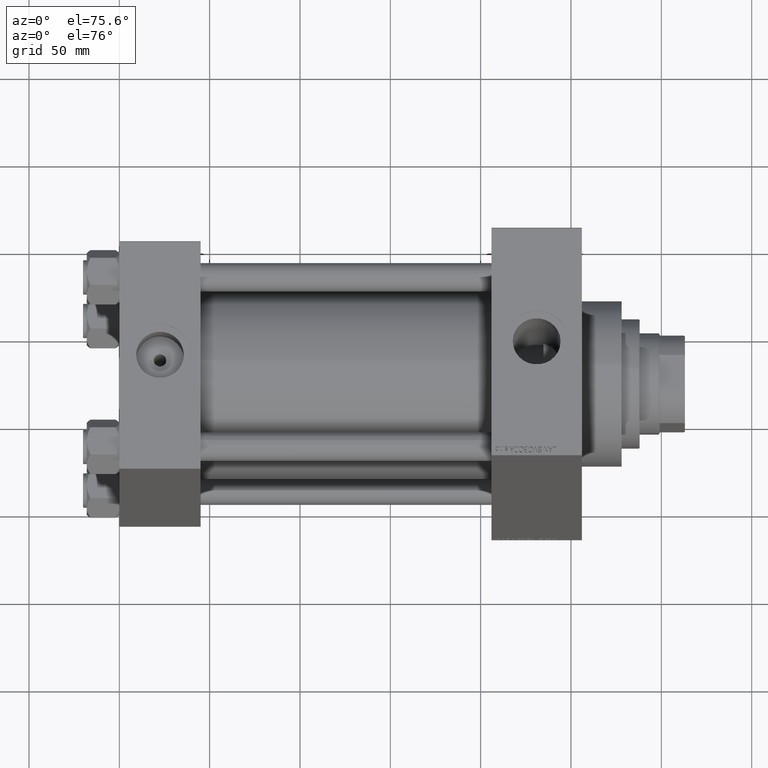
[diagram: clean part render]
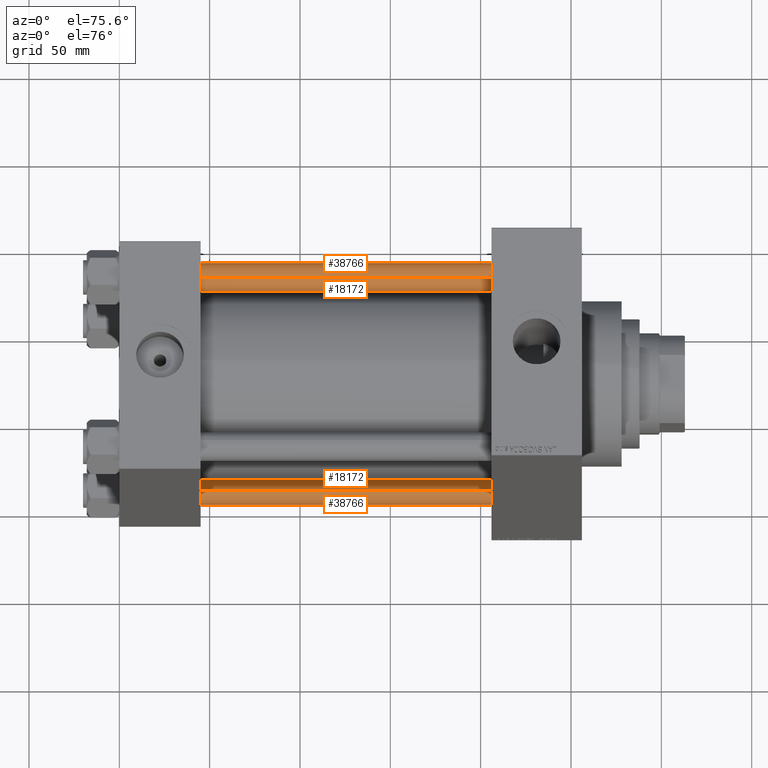
[diagram: same view with one multi-face feature highlighted, each face labeled with its STEP entity id]
A machine part, auxiliary view. The highlighted faces form ONE feature: a constant-radius fillet chain: 4 tangent blend faces with common blend radius 8 mm. The faces share edges in the B-rep.
Their STEP definitions:
[1] entity #18172 (Cylinder):
#801 = ORIENTED_EDGE ( 'NONE', *, *, #19070, .T. ) ;
#1040 = CIRCLE ( 'NONE', #34179, 8.000000000000000000 ) ;
#1602 = CARTESIAN_POINT ( 'NONE',  ( -8.000000000000000000, 0.000000000000000000, 0.5000000000000837108 ) ) ;
#2295 = ORIENTED_EDGE ( 'NONE', *, *, #24264, .F. ) ;
#2569 = VECTOR ( 'NONE', #39335, 1000.000000000000000 ) ;
#3221 = AXIS2_PLACEMENT_3D ( 'NONE', #13576, #24436, #35773 ) ;
#5987 = CARTESIAN_POINT ( 'NONE',  ( 0.000000000000000000, 0.000000000000000000, 0.5000000000000837108 ) ) ;
#8645 = LINE ( 'NONE', #27465, #17211 ) ;
#12040 = EDGE_CURVE ( 'NONE', #45535, #38087, #8645, .T. ) ;
#12161 = FACE_OUTER_BOUND ( 'NONE', #16840, .T. ) ;
#13335 = CYLINDRICAL_SURFACE ( 'NONE', #3221, 8.000000000000000000 ) ;
#13576 = CARTESIAN_POINT ( 'NONE',  ( 0.000000000000000000, 0.000000000000000000, 239.0000000000000000 ) ) ;
#15789 = DIRECTION ( 'NONE',  ( 1.000000000000000000, 0.000000000000000000, 0.000000000000000000 ) ) ;
#16840 = EDGE_LOOP ( 'NONE', ( #2295, #801, #19944, #38051 ) ) ;
#16850 = DIRECTION ( 'NONE',  ( -0.000000000000000000, -0.000000000000000000, 1.000000000000000000 ) ) ;
#17211 = VECTOR ( 'NONE', #27235, 1000.000000000000000 ) ;
#17333 = DIRECTION ( 'NONE',  ( 1.000000000000000000, 0.000000000000000000, 0.000000000000000000 ) ) ;
#18172 = ADVANCED_FACE ( 'NONE', ( #12161 ), #13335, .T. ) ;
#19016 = CARTESIAN_POINT ( 'NONE',  ( 8.000000000000000000, 9.797174393178823685E-16, 0.5000000000000837108 ) ) ;
#19070 = EDGE_CURVE ( 'NONE', #19760, #45535, #21009, .T. ) ;
#19760 = VERTEX_POINT ( 'NONE', #26352 ) ;
#19944 = ORIENTED_EDGE ( 'NONE', *, *, #12040, .T. ) ;
#21009 = CIRCLE ( 'NONE', #29491, 8.000000000000000000 ) ;
#24264 = EDGE_CURVE ( 'NONE', #19760, #38942, #39819, .T. ) ;
#24436 = DIRECTION ( 'NONE',  ( -0.000000000000000000, -0.000000000000000000, -1.000000000000000000 ) ) ;
#24458 = EDGE_CURVE ( 'NONE', #38087, #38942, #1040, .T. ) ;
#26352 = CARTESIAN_POINT ( 'NONE',  ( 8.000000000000000000, 9.797174393178823685E-16, 238.5000000000001421 ) ) ;
#27235 = DIRECTION ( 'NONE',  ( -0.000000000000000000, -0.000000000000000000, -1.000000000000000000 ) ) ;
#27465 = CARTESIAN_POINT ( 'NONE',  ( -8.000000000000000000, 0.000000000000000000, 239.0000000000000000 ) ) ;
#29491 = AXIS2_PLACEMENT_3D ( 'NONE', #30273, #37991, #15789 ) ;
#30273 = CARTESIAN_POINT ( 'NONE',  ( 0.000000000000000000, 0.000000000000000000, 238.5000000000001421 ) ) ;
#34179 = AXIS2_PLACEMENT_3D ( 'NONE', #5987, #16850, #17333 ) ;
#35773 = DIRECTION ( 'NONE',  ( -1.000000000000000000, 0.000000000000000000, 0.000000000000000000 ) ) ;
#37991 = DIRECTION ( 'NONE',  ( 0.000000000000000000, 0.000000000000000000, -1.000000000000000000 ) ) ;
#38051 = ORIENTED_EDGE ( 'NONE', *, *, #24458, .T. ) ;
#38087 = VERTEX_POINT ( 'NONE', #1602 ) ;
#38942 = VERTEX_POINT ( 'NONE', #19016 ) ;
#39335 = DIRECTION ( 'NONE',  ( -0.000000000000000000, -0.000000000000000000, -1.000000000000000000 ) ) ;
#39819 = LINE ( 'NONE', #42744, #2569 ) ;
#42744 = CARTESIAN_POINT ( 'NONE',  ( 8.000000000000000000, 9.797174393178823685E-16, 239.0000000000000000 ) ) ;
#45535 = VERTEX_POINT ( 'NONE', #47072 ) ;
#47072 = CARTESIAN_POINT ( 'NONE',  ( -8.000000000000000000, 0.000000000000000000, 238.5000000000001421 ) ) ;
[2] entity #38766 (Cylinder):
#1602 = CARTESIAN_POINT ( 'NONE',  ( -8.000000000000000000, 0.000000000000000000, 0.5000000000000837108 ) ) ;
#2569 = VECTOR ( 'NONE', #39335, 1000.000000000000000 ) ;
#7636 = EDGE_CURVE ( 'NONE', #38942, #38087, #28745, .T. ) ;
#7681 = AXIS2_PLACEMENT_3D ( 'NONE', #42783, #47118, #32145 ) ;
#7963 = AXIS2_PLACEMENT_3D ( 'NONE', #17811, #10338, #10817 ) ;
#8040 = CARTESIAN_POINT ( 'NONE',  ( 0.000000000000000000, 0.000000000000000000, 239.0000000000000000 ) ) ;
#8645 = LINE ( 'NONE', #27465, #17211 ) ;
#10338 = DIRECTION ( 'NONE',  ( -0.000000000000000000, -0.000000000000000000, 1.000000000000000000 ) ) ;
#10817 = DIRECTION ( 'NONE',  ( 1.000000000000000000, 0.000000000000000000, 0.000000000000000000 ) ) ;
#12040 = EDGE_CURVE ( 'NONE', #45535, #38087, #8645, .T. ) ;
#12154 = AXIS2_PLACEMENT_3D ( 'NONE', #8040, #23225, #37706 ) ;
#17211 = VECTOR ( 'NONE', #27235, 1000.000000000000000 ) ;
#17811 = CARTESIAN_POINT ( 'NONE',  ( 0.000000000000000000, 0.000000000000000000, 0.5000000000000837108 ) ) ;
#19016 = CARTESIAN_POINT ( 'NONE',  ( 8.000000000000000000, 9.797174393178823685E-16, 0.5000000000000837108 ) ) ;
#19760 = VERTEX_POINT ( 'NONE', #26352 ) ;
#23225 = DIRECTION ( 'NONE',  ( -0.000000000000000000, -0.000000000000000000, -1.000000000000000000 ) ) ;
#24264 = EDGE_CURVE ( 'NONE', #19760, #38942, #39819, .T. ) ;
#24975 = EDGE_LOOP ( 'NONE', ( #41125, #27237, #36837, #29425 ) ) ;
#26352 = CARTESIAN_POINT ( 'NONE',  ( 8.000000000000000000, 9.797174393178823685E-16, 238.5000000000001421 ) ) ;
#27235 = DIRECTION ( 'NONE',  ( -0.000000000000000000, -0.000000000000000000, -1.000000000000000000 ) ) ;
#27237 = ORIENTED_EDGE ( 'NONE', *, *, #24264, .T. ) ;
#27465 = CARTESIAN_POINT ( 'NONE',  ( -8.000000000000000000, 0.000000000000000000, 239.0000000000000000 ) ) ;
#28745 = CIRCLE ( 'NONE', #7963, 8.000000000000000000 ) ;
#29425 = ORIENTED_EDGE ( 'NONE', *, *, #12040, .F. ) ;
#30226 = CYLINDRICAL_SURFACE ( 'NONE', #12154, 8.000000000000000000 ) ;
#32145 = DIRECTION ( 'NONE',  ( 1.000000000000000000, 0.000000000000000000, 0.000000000000000000 ) ) ;
#34640 = CIRCLE ( 'NONE', #7681, 8.000000000000000000 ) ;
#36837 = ORIENTED_EDGE ( 'NONE', *, *, #7636, .T. ) ;
#37471 = FACE_OUTER_BOUND ( 'NONE', #24975, .T. ) ;
#37706 = DIRECTION ( 'NONE',  ( -1.000000000000000000, 0.000000000000000000, 0.000000000000000000 ) ) ;
#38087 = VERTEX_POINT ( 'NONE', #1602 ) ;
#38766 = ADVANCED_FACE ( 'NONE', ( #37471 ), #30226, .T. ) ;
#38942 = VERTEX_POINT ( 'NONE', #19016 ) ;
#39335 = DIRECTION ( 'NONE',  ( -0.000000000000000000, -0.000000000000000000, -1.000000000000000000 ) ) ;
#39819 = LINE ( 'NONE', #42744, #2569 ) ;
#41125 = ORIENTED_EDGE ( 'NONE', *, *, #43232, .T. ) ;
#42744 = CARTESIAN_POINT ( 'NONE',  ( 8.000000000000000000, 9.797174393178823685E-16, 239.0000000000000000 ) ) ;
#42783 = CARTESIAN_POINT ( 'NONE',  ( 0.000000000000000000, 0.000000000000000000, 238.5000000000001421 ) ) ;
#43232 = EDGE_CURVE ( 'NONE', #45535, #19760, #34640, .T. ) ;
#45535 = VERTEX_POINT ( 'NONE', #47072 ) ;
#47072 = CARTESIAN_POINT ( 'NONE',  ( -8.000000000000000000, 0.000000000000000000, 238.5000000000001421 ) ) ;
#47118 = DIRECTION ( 'NONE',  ( 0.000000000000000000, 0.000000000000000000, -1.000000000000000000 ) ) ;
[3] entity #18172 (Cylinder):
#801 = ORIENTED_EDGE ( 'NONE', *, *, #19070, .T. ) ;
#1040 = CIRCLE ( 'NONE', #34179, 8.000000000000000000 ) ;
#1602 = CARTESIAN_POINT ( 'NONE',  ( -8.000000000000000000, 0.000000000000000000, 0.5000000000000837108 ) ) ;
#2295 = ORIENTED_EDGE ( 'NONE', *, *, #24264, .F. ) ;
#2569 = VECTOR ( 'NONE', #39335, 1000.000000000000000 ) ;
#3221 = AXIS2_PLACEMENT_3D ( 'NONE', #13576, #24436, #35773 ) ;
#5987 = CARTESIAN_POINT ( 'NONE',  ( 0.000000000000000000, 0.000000000000000000, 0.5000000000000837108 ) ) ;
#8645 = LINE ( 'NONE', #27465, #17211 ) ;
#12040 = EDGE_CURVE ( 'NONE', #45535, #38087, #8645, .T. ) ;
#12161 = FACE_OUTER_BOUND ( 'NONE', #16840, .T. ) ;
#13335 = CYLINDRICAL_SURFACE ( 'NONE', #3221, 8.000000000000000000 ) ;
#13576 = CARTESIAN_POINT ( 'NONE',  ( 0.000000000000000000, 0.000000000000000000, 239.0000000000000000 ) ) ;
#15789 = DIRECTION ( 'NONE',  ( 1.000000000000000000, 0.000000000000000000, 0.000000000000000000 ) ) ;
#16840 = EDGE_LOOP ( 'NONE', ( #2295, #801, #19944, #38051 ) ) ;
#16850 = DIRECTION ( 'NONE',  ( -0.000000000000000000, -0.000000000000000000, 1.000000000000000000 ) ) ;
#17211 = VECTOR ( 'NONE', #27235, 1000.000000000000000 ) ;
#17333 = DIRECTION ( 'NONE',  ( 1.000000000000000000, 0.000000000000000000, 0.000000000000000000 ) ) ;
#18172 = ADVANCED_FACE ( 'NONE', ( #12161 ), #13335, .T. ) ;
#19016 = CARTESIAN_POINT ( 'NONE',  ( 8.000000000000000000, 9.797174393178823685E-16, 0.5000000000000837108 ) ) ;
#19070 = EDGE_CURVE ( 'NONE', #19760, #45535, #21009, .T. ) ;
#19760 = VERTEX_POINT ( 'NONE', #26352 ) ;
#19944 = ORIENTED_EDGE ( 'NONE', *, *, #12040, .T. ) ;
#21009 = CIRCLE ( 'NONE', #29491, 8.000000000000000000 ) ;
#24264 = EDGE_CURVE ( 'NONE', #19760, #38942, #39819, .T. ) ;
#24436 = DIRECTION ( 'NONE',  ( -0.000000000000000000, -0.000000000000000000, -1.000000000000000000 ) ) ;
#24458 = EDGE_CURVE ( 'NONE', #38087, #38942, #1040, .T. ) ;
#26352 = CARTESIAN_POINT ( 'NONE',  ( 8.000000000000000000, 9.797174393178823685E-16, 238.5000000000001421 ) ) ;
#27235 = DIRECTION ( 'NONE',  ( -0.000000000000000000, -0.000000000000000000, -1.000000000000000000 ) ) ;
#27465 = CARTESIAN_POINT ( 'NONE',  ( -8.000000000000000000, 0.000000000000000000, 239.0000000000000000 ) ) ;
#29491 = AXIS2_PLACEMENT_3D ( 'NONE', #30273, #37991, #15789 ) ;
#30273 = CARTESIAN_POINT ( 'NONE',  ( 0.000000000000000000, 0.000000000000000000, 238.5000000000001421 ) ) ;
#34179 = AXIS2_PLACEMENT_3D ( 'NONE', #5987, #16850, #17333 ) ;
#35773 = DIRECTION ( 'NONE',  ( -1.000000000000000000, 0.000000000000000000, 0.000000000000000000 ) ) ;
#37991 = DIRECTION ( 'NONE',  ( 0.000000000000000000, 0.000000000000000000, -1.000000000000000000 ) ) ;
#38051 = ORIENTED_EDGE ( 'NONE', *, *, #24458, .T. ) ;
#38087 = VERTEX_POINT ( 'NONE', #1602 ) ;
#38942 = VERTEX_POINT ( 'NONE', #19016 ) ;
#39335 = DIRECTION ( 'NONE',  ( -0.000000000000000000, -0.000000000000000000, -1.000000000000000000 ) ) ;
#39819 = LINE ( 'NONE', #42744, #2569 ) ;
#42744 = CARTESIAN_POINT ( 'NONE',  ( 8.000000000000000000, 9.797174393178823685E-16, 239.0000000000000000 ) ) ;
#45535 = VERTEX_POINT ( 'NONE', #47072 ) ;
#47072 = CARTESIAN_POINT ( 'NONE',  ( -8.000000000000000000, 0.000000000000000000, 238.5000000000001421 ) ) ;
[4] entity #38766 (Cylinder):
#1602 = CARTESIAN_POINT ( 'NONE',  ( -8.000000000000000000, 0.000000000000000000, 0.5000000000000837108 ) ) ;
#2569 = VECTOR ( 'NONE', #39335, 1000.000000000000000 ) ;
#7636 = EDGE_CURVE ( 'NONE', #38942, #38087, #28745, .T. ) ;
#7681 = AXIS2_PLACEMENT_3D ( 'NONE', #42783, #47118, #32145 ) ;
#7963 = AXIS2_PLACEMENT_3D ( 'NONE', #17811, #10338, #10817 ) ;
#8040 = CARTESIAN_POINT ( 'NONE',  ( 0.000000000000000000, 0.000000000000000000, 239.0000000000000000 ) ) ;
#8645 = LINE ( 'NONE', #27465, #17211 ) ;
#10338 = DIRECTION ( 'NONE',  ( -0.000000000000000000, -0.000000000000000000, 1.000000000000000000 ) ) ;
#10817 = DIRECTION ( 'NONE',  ( 1.000000000000000000, 0.000000000000000000, 0.000000000000000000 ) ) ;
#12040 = EDGE_CURVE ( 'NONE', #45535, #38087, #8645, .T. ) ;
#12154 = AXIS2_PLACEMENT_3D ( 'NONE', #8040, #23225, #37706 ) ;
#17211 = VECTOR ( 'NONE', #27235, 1000.000000000000000 ) ;
#17811 = CARTESIAN_POINT ( 'NONE',  ( 0.000000000000000000, 0.000000000000000000, 0.5000000000000837108 ) ) ;
#19016 = CARTESIAN_POINT ( 'NONE',  ( 8.000000000000000000, 9.797174393178823685E-16, 0.5000000000000837108 ) ) ;
#19760 = VERTEX_POINT ( 'NONE', #26352 ) ;
#23225 = DIRECTION ( 'NONE',  ( -0.000000000000000000, -0.000000000000000000, -1.000000000000000000 ) ) ;
#24264 = EDGE_CURVE ( 'NONE', #19760, #38942, #39819, .T. ) ;
#24975 = EDGE_LOOP ( 'NONE', ( #41125, #27237, #36837, #29425 ) ) ;
#26352 = CARTESIAN_POINT ( 'NONE',  ( 8.000000000000000000, 9.797174393178823685E-16, 238.5000000000001421 ) ) ;
#27235 = DIRECTION ( 'NONE',  ( -0.000000000000000000, -0.000000000000000000, -1.000000000000000000 ) ) ;
#27237 = ORIENTED_EDGE ( 'NONE', *, *, #24264, .T. ) ;
#27465 = CARTESIAN_POINT ( 'NONE',  ( -8.000000000000000000, 0.000000000000000000, 239.0000000000000000 ) ) ;
#28745 = CIRCLE ( 'NONE', #7963, 8.000000000000000000 ) ;
#29425 = ORIENTED_EDGE ( 'NONE', *, *, #12040, .F. ) ;
#30226 = CYLINDRICAL_SURFACE ( 'NONE', #12154, 8.000000000000000000 ) ;
#32145 = DIRECTION ( 'NONE',  ( 1.000000000000000000, 0.000000000000000000, 0.000000000000000000 ) ) ;
#34640 = CIRCLE ( 'NONE', #7681, 8.000000000000000000 ) ;
#36837 = ORIENTED_EDGE ( 'NONE', *, *, #7636, .T. ) ;
#37471 = FACE_OUTER_BOUND ( 'NONE', #24975, .T. ) ;
#37706 = DIRECTION ( 'NONE',  ( -1.000000000000000000, 0.000000000000000000, 0.000000000000000000 ) ) ;
#38087 = VERTEX_POINT ( 'NONE', #1602 ) ;
#38766 = ADVANCED_FACE ( 'NONE', ( #37471 ), #30226, .T. ) ;
#38942 = VERTEX_POINT ( 'NONE', #19016 ) ;
#39335 = DIRECTION ( 'NONE',  ( -0.000000000000000000, -0.000000000000000000, -1.000000000000000000 ) ) ;
#39819 = LINE ( 'NONE', #42744, #2569 ) ;
#41125 = ORIENTED_EDGE ( 'NONE', *, *, #43232, .T. ) ;
#42744 = CARTESIAN_POINT ( 'NONE',  ( 8.000000000000000000, 9.797174393178823685E-16, 239.0000000000000000 ) ) ;
#42783 = CARTESIAN_POINT ( 'NONE',  ( 0.000000000000000000, 0.000000000000000000, 238.5000000000001421 ) ) ;
#43232 = EDGE_CURVE ( 'NONE', #45535, #19760, #34640, .T. ) ;
#45535 = VERTEX_POINT ( 'NONE', #47072 ) ;
#47072 = CARTESIAN_POINT ( 'NONE',  ( -8.000000000000000000, 0.000000000000000000, 238.5000000000001421 ) ) ;
#47118 = DIRECTION ( 'NONE',  ( 0.000000000000000000, 0.000000000000000000, -1.000000000000000000 ) ) ;